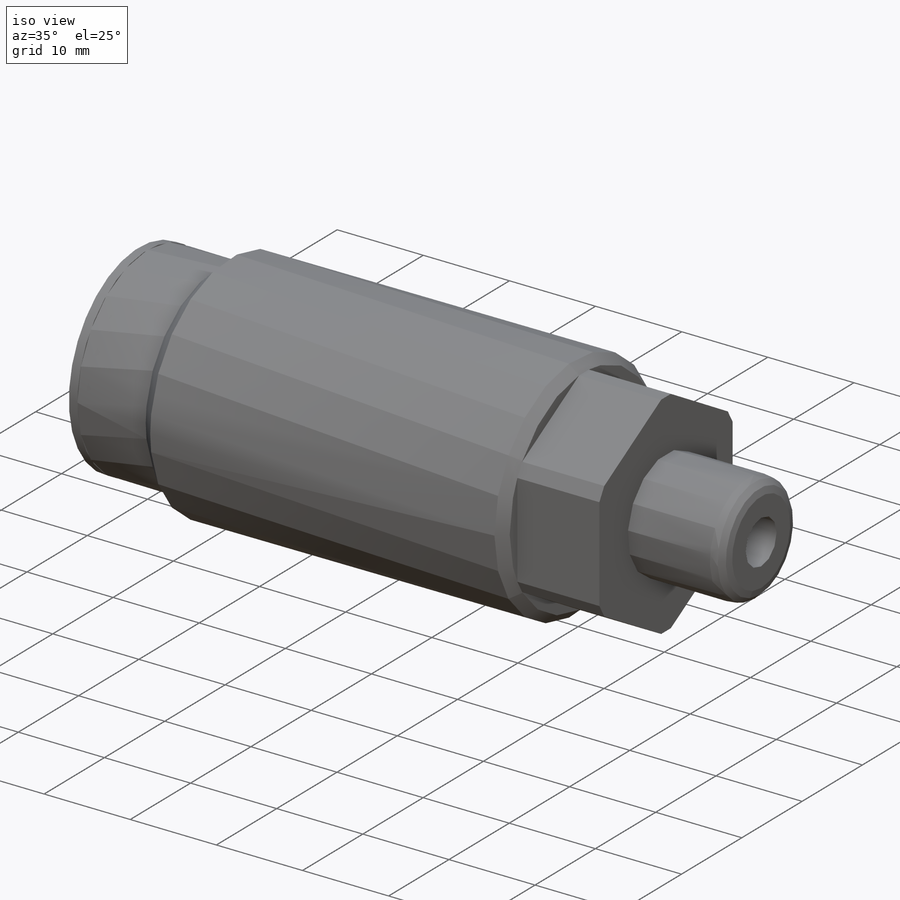
[diagram: iso view]
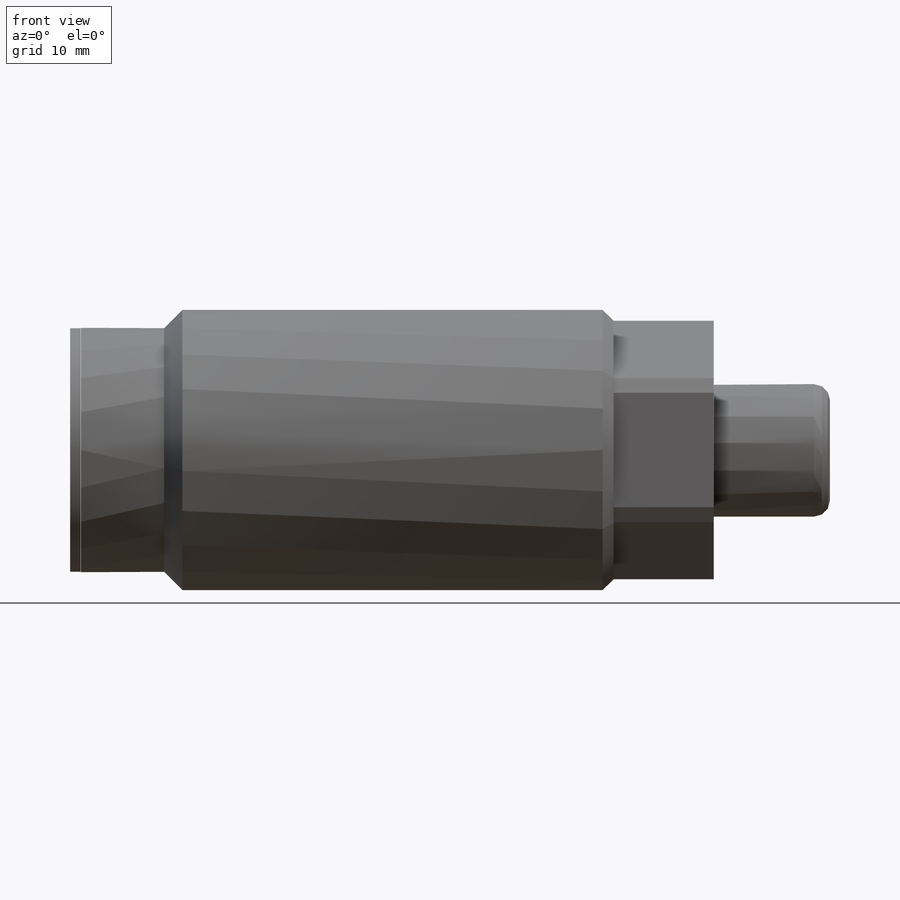
[diagram: front view]
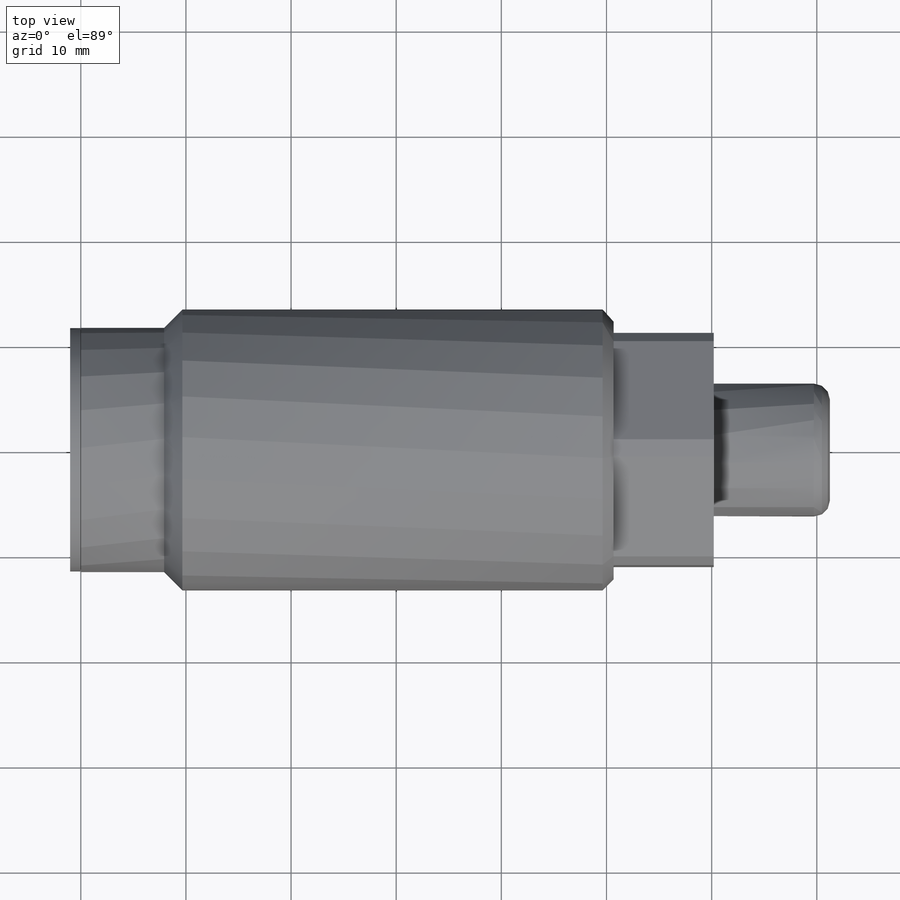
[diagram: top view]
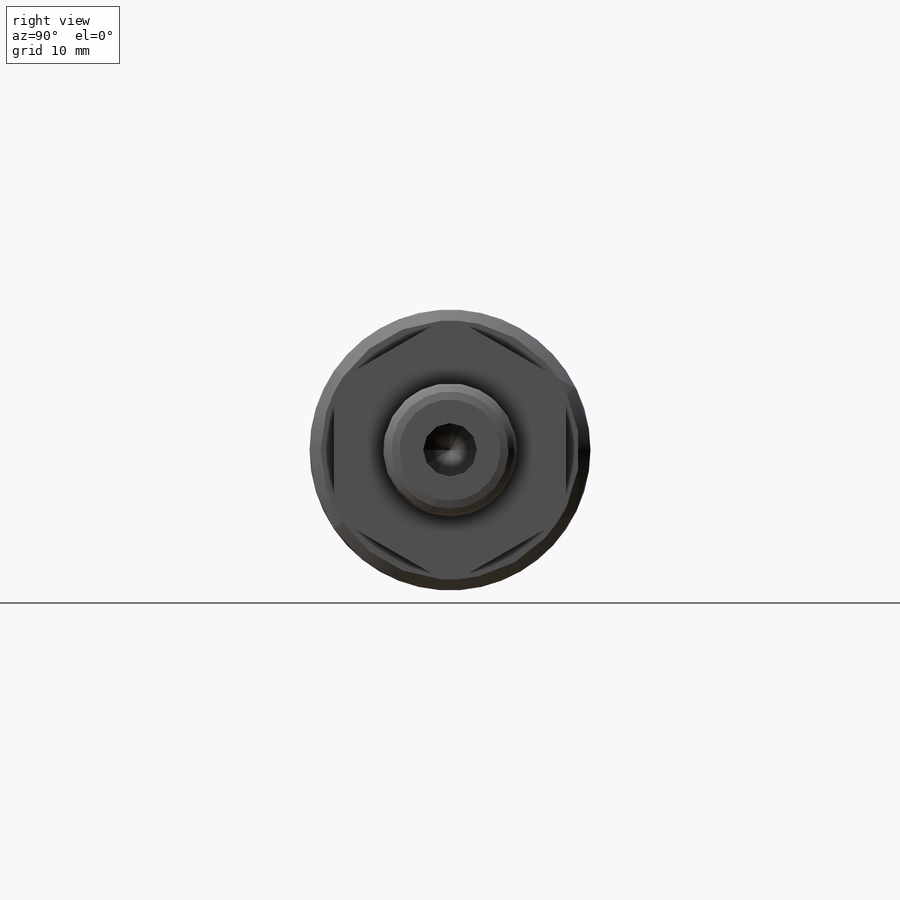
[diagram: right view]
SOLIDWORKS PART (.sldprt)
format: sldprt  version: not decoded by parser v0  size: 258,048 bytes
history: native  units: mm
features: sketch x8, revolve x3, plane x2, material x1, extrude x1, hole x1, cut_extrude x1, chamfer x1, fillet x1, cut_revolve x1 (+13 scaffold rows collapsed)
feature tree (33):
  scaffold x13  (default folders/planes/origin — collapsed)
  material  "Alloy Steel"
  sketch  "Sketch11"  dims[D1=19.177mm D2=0.9906mm D3=23.1902mm D4=0.0254mm]
  revolve  "Revolve5"  Angle=360deg
  plane  "Plane4"
  sketch  "Sketch12"  dims[c1.D1=26.7208mm c1.D2=0.0254mm c1.D3=23.241mm c1.D4=~0.72771mm c2.D4=45.0deg c2.D5=7.9248mm c2.D6=50.673mm]
  revolve  "Revolve6"  Angle=360deg
  sketch  "Sketch13"  dims[D1=22.098mm]
  extrude  "Extrude3"  Depth=9.525mm
  plane  "Plane5"
  sketch  "Sketch14"  dims[c1.D3=6.35mm c1.D1=12.6746mm c1.D2=30.3276mm c2.D2=71.247mm]
  revolve  "Revolve7"  Angle=360deg
  hole  "Hole3"  Diameter=13.462mm Depth=1.016mm
  sketch  "Sketch16"
  sketch  "Sketch15"  dims[Diameter=13.462mm Depth=1.016mm]
  sketch  "Sketch17"  dims[D1=24.638mm]
  cut_extrude  "Cut-Extrude1"  [1 undecoded]
  chamfer  "Chamfer4"  Distance=1.0414mm Angle=45deg
  fillet  "Fillet1"  Radius=1.524mm
  sketch  "Sketch18"  dims[c1.D1=5.1054mm c1.D2=16.002mm c1.D3=~23.241057mm c2.D3=59.0deg]
  cut_revolve  "Cut-Revolve1"  Angle=360deg
decode coverage: 15 of 17 modeling features carry decoded parameters
note: ~ marks probable driven/reference dimensions
note: 1 parameter value undecoded
note: suppression state not decoded; provenance and decode notes live in map.json
